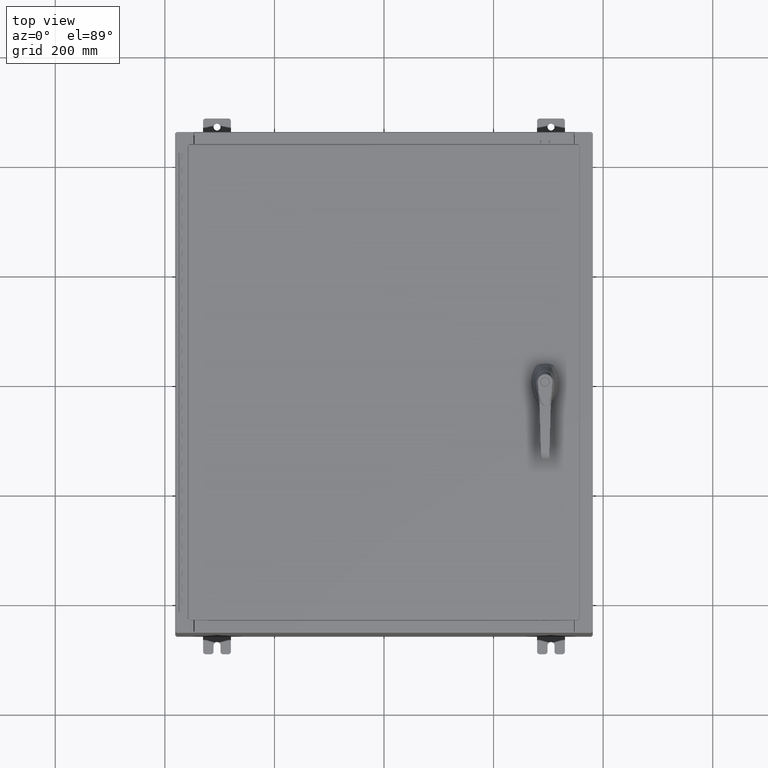
[diagram: clean part render]
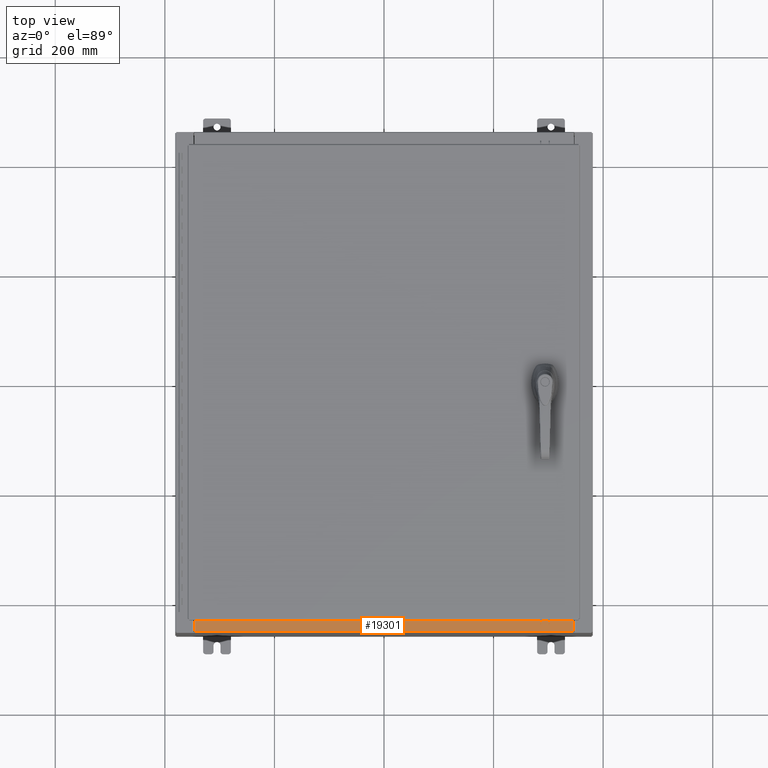
[diagram: same view with one face highlighted and labeled with its STEP entity id]
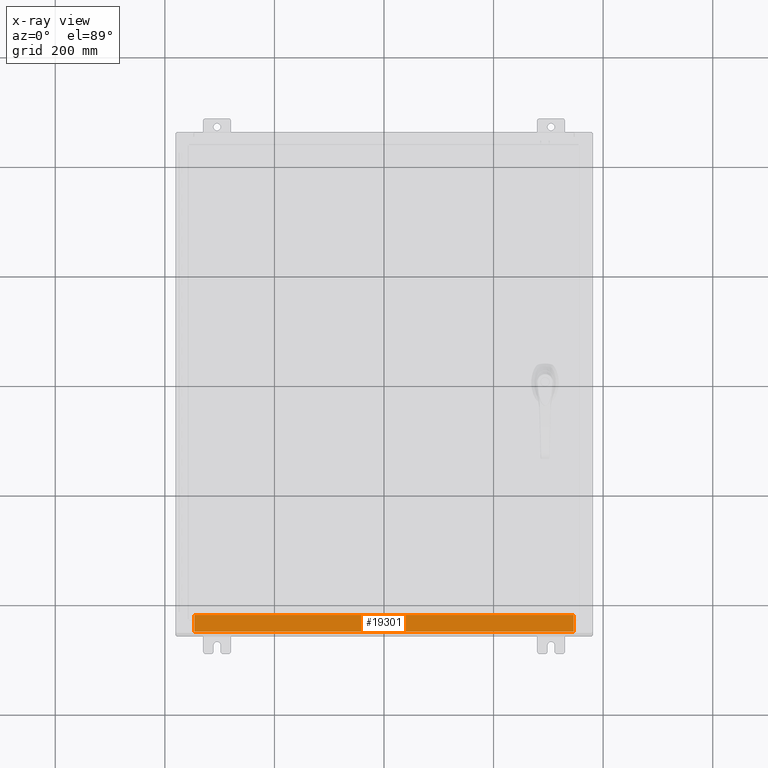
[diagram: x-ray of the same camera — body ghosted, the highlighted face saturated]
A machine part, top view. The second image highlights one B-rep face of the part: STEP entity #19301.
The next image is the same camera in x-ray: the body ghosted, the highlighted face saturated — about 0% of this face is hidden behind the body in this view.
In plain terms, the highlighted planar face has unit normal (-0, -0, 1).
Its self-contained STEP definition (entity closure, byte-faithful):
#395 = VECTOR ( 'NONE', #90764, 39.37007874015748100 ) ;
#2940 = FACE_OUTER_BOUND ( 'NONE', #38768, .T. ) ;
#5350 = VERTEX_POINT ( 'NONE', #10533 ) ;
#8734 = EDGE_CURVE ( 'NONE', #16048, #16385, #25540, .T. ) ;
#10533 = CARTESIAN_POINT ( 'NONE',  ( -13.63719999999999800, -1.287299999999999400, 8.000000000000003600 ) ) ;
#10543 = VECTOR ( 'NONE', #69290, 39.37007874015748100 ) ;
#11361 = CARTESIAN_POINT ( 'NONE',  ( 6.405177647445352000E-016, 2.852545452309694500E-014, 7.999999999999999100 ) ) ;
#12652 = VECTOR ( 'NONE', #103669, 39.37007874015748100 ) ;
#12906 = ORIENTED_EDGE ( 'NONE', *, *, #68683, .T. ) ;
#13479 = LINE ( 'NONE', #78448, #10543 ) ;
#16048 = VERTEX_POINT ( 'NONE', #38859 ) ;
#16385 = VERTEX_POINT ( 'NONE', #90178 ) ;
#19301 = ADVANCED_FACE ( 'NONE', ( #2940 ), #115508, .T. ) ;
#20251 = LINE ( 'NONE', #82593, #121227 ) ;
#21148 = ORIENTED_EDGE ( 'NONE', *, *, #119095, .F. ) ;
#25540 = LINE ( 'NONE', #71683, #395 ) ;
#31834 = ORIENTED_EDGE ( 'NONE', *, *, #8734, .F. ) ;
#33418 = ORIENTED_EDGE ( 'NONE', *, *, #113092, .F. ) ;
#37253 = CARTESIAN_POINT ( 'NONE',  ( 6.299767562217697500E-016, -0.08769999999999862600, 7.999999999999999100 ) ) ;
#38768 = EDGE_LOOP ( 'NONE', ( #33418, #21148, #31834, #12906 ) ) ;
#38859 = CARTESIAN_POINT ( 'NONE',  ( 13.63720000000000400, -0.08769999999999829300, 7.999999999999997300 ) ) ;
#44817 = DIRECTION ( 'NONE',  ( -0.0000000000000000000, 1.000000000000000000, -3.566381192773190000E-015 ) ) ;
#46482 = CARTESIAN_POINT ( 'NONE',  ( -13.63719999999999800, -0.08769999999999862600, 8.000000000000000000 ) ) ;
#49443 = DIRECTION ( 'NONE',  ( 8.012929321750104000E-017, 3.566381192773190000E-015, 1.000000000000000000 ) ) ;
#68683 = EDGE_CURVE ( 'NONE', #16048, #113215, #88312, .T. ) ;
#69290 = DIRECTION ( 'NONE',  ( -1.000000000000000000, 0.0000000000000000000, 0.0000000000000000000 ) ) ;
#71683 = CARTESIAN_POINT ( 'NONE',  ( 13.63720000000000400, -1.300299999999999800, 8.000000000000001800 ) ) ;
#77456 = AXIS2_PLACEMENT_3D ( 'NONE', #11361, #49443, #115904 ) ;
#78448 = CARTESIAN_POINT ( 'NONE',  ( 13.63720000000000400, -1.287300000000000300, 8.000000000000003600 ) ) ;
#82593 = CARTESIAN_POINT ( 'NONE',  ( -13.63719999999999800, -0.07469999999999973900, 8.000000000000000000 ) ) ;
#88312 = LINE ( 'NONE', #37253, #12652 ) ;
#90178 = CARTESIAN_POINT ( 'NONE',  ( 13.63720000000000400, -1.287300000000000300, 8.000000000000001800 ) ) ;
#90764 = DIRECTION ( 'NONE',  ( -0.0000000000000000000, -1.000000000000000000, 3.566381192773190000E-015 ) ) ;
#103669 = DIRECTION ( 'NONE',  ( -1.000000000000000000, 1.201939398262515800E-016, 8.012929321750060900E-017 ) ) ;
#113092 = EDGE_CURVE ( 'NONE', #5350, #113215, #20251, .T. ) ;
#113215 = VERTEX_POINT ( 'NONE', #46482 ) ;
#115508 = PLANE ( 'NONE',  #77456 ) ;
#115904 = DIRECTION ( 'NONE',  ( 0.0000000000000000000, -1.000000000000000000, 3.566381192773190000E-015 ) ) ;
#119095 = EDGE_CURVE ( 'NONE', #16385, #5350, #13479, .T. ) ;
#121227 = VECTOR ( 'NONE', #44817, 39.37007874015748100 ) ;